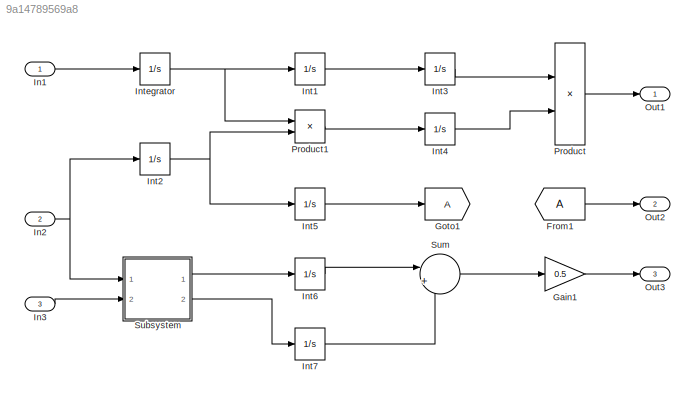
MODEL slx_9a14789569a8
KIND model
CONFIG AbsTol = auto
CONFIG EnableMultiTasking = on
CONFIG FixedStep = auto
CONFIG MaxStep = auto
CONFIG MinStep = auto
CONFIG RelTol = 1e-3
CONFIG SampleTimeConstraint = Unconstrained
CONFIG Solver = ode45
CONFIG SolverName = ode45
CONFIG StartTime = 0.0
CONFIG StopTime = 10.0
BLOCK [From] From1
BLOCK [Gain] Gain1
  Gain = 0.5
  OutDataTypeStr = Inherit: Inherit via internal rule
  ParamDataTypeStr = Inherit: Inherit via internal rule
  SaturateOnIntegerOverflow = off
BLOCK [Goto] Goto1
BLOCK [Inport] In1
  IconDisplay = Port number
BLOCK [Inport] In2
  IconDisplay = Port number
  Port = 2
BLOCK [Inport] In3
  IconDisplay = Port number
  Port = 3
BLOCK [Integrator] Int1
  Ports = [1, 1]
BLOCK [Integrator] Int2
  Ports = [1, 1]
BLOCK [Integrator] Int3
  Ports = [1, 1]
BLOCK [Integrator] Int4
  Ports = [1, 1]
BLOCK [Integrator] Int5
  Ports = [1, 1]
BLOCK [Integrator] Int6
  Ports = [1, 1]
BLOCK [Integrator] Int7
  Ports = [1, 1]
BLOCK [Integrator] Integrator
  Ports = [1, 1]
BLOCK [Outport] Out1
  IconDisplay = Port number
BLOCK [Outport] Out2
  IconDisplay = Port number
  Port = 2
BLOCK [Outport] Out3
  IconDisplay = Port number
  Port = 3
BLOCK [Product] Product
  InputSameDT = off
  OutDataTypeStr = Inherit: Inherit via internal rule
  Ports = [2, 1]
  SaturateOnIntegerOverflow = off
BLOCK [Product] Product1
  InputSameDT = off
  OutDataTypeStr = Inherit: Inherit via internal rule
  Ports = [2, 1]
  SaturateOnIntegerOverflow = off
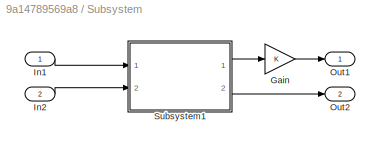
BLOCK [SubSystem] Subsystem
  Ports = [2, 2]
  RequestExecContextInheritance = off
  Variant = off
BLOCK [Gain] Subsystem/Gain
  OutDataTypeStr = Inherit: Inherit via internal rule
  ParamDataTypeStr = Inherit: Inherit via internal rule
  SaturateOnIntegerOverflow = off
BLOCK [Inport] Subsystem/In1
  IconDisplay = Port number
BLOCK [Inport] Subsystem/In2
  IconDisplay = Port number
  Port = 2
BLOCK [Outport] Subsystem/Out1
  IconDisplay = Port number
BLOCK [Outport] Subsystem/Out2
  IconDisplay = Port number
  Port = 2
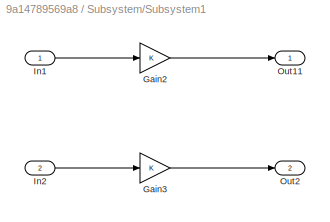
BLOCK [SubSystem] Subsystem/Subsystem1
  Ports = [2, 2]
  RequestExecContextInheritance = off
  Variant = off
BLOCK [Gain] Subsystem/Subsystem1/Gain2
  OutDataTypeStr = Inherit: Inherit via internal rule
  ParamDataTypeStr = Inherit: Inherit via internal rule
  SaturateOnIntegerOverflow = off
BLOCK [Gain] Subsystem/Subsystem1/Gain3
  OutDataTypeStr = Inherit: Inherit via internal rule
  ParamDataTypeStr = Inherit: Inherit via internal rule
  SaturateOnIntegerOverflow = off
BLOCK [Inport] Subsystem/Subsystem1/In1
  IconDisplay = Port number
BLOCK [Inport] Subsystem/Subsystem1/In2
  IconDisplay = Port number
  Port = 2
BLOCK [Outport] Subsystem/Subsystem1/Out11
  IconDisplay = Port number
BLOCK [Outport] Subsystem/Subsystem1/Out2
  IconDisplay = Port number
  Port = 2
BLOCK [Sum] Sum
  IconShape = round
  InputSameDT = off
  Inputs = |++
  OutDataTypeStr = Inherit: Inherit via internal rule
  Ports = [2, 1]
  SaturateOnIntegerOverflow = off
LINE From1:1 -> Out2:1
LINE Gain1:1 -> Out3:1
LINE In1:1 -> Integrator:1
NET In2:1 -> Int2:1, Subsystem:1
LINE In3:1 -> Subsystem:2
LINE Int1:1 -> Int3:1
NET Int2:1 -> Int5:1, Product1:2
LINE Int3:1 -> Product:1
LINE Int4:1 -> Product:2
LINE Int5:1 -> Goto1:1
LINE Int6:1 -> Sum:1
LINE Int7:1 -> Sum:2
NET Integrator:1 -> Int1:1, Product1:1
LINE Product1:1 -> Int4:1
LINE Product:1 -> Out1:1
LINE Subsystem/Gain:1 -> Subsystem/Out1:1
LINE Subsystem/In1:1 -> Subsystem/Subsystem1:1
LINE Subsystem/In2:1 -> Subsystem/Subsystem1:2
LINE Subsystem/Subsystem1/Gain2:1 -> Subsystem/Subsystem1/Out11:1
LINE Subsystem/Subsystem1/Gain3:1 -> Subsystem/Subsystem1/Out2:1
LINE Subsystem/Subsystem1/In1:1 -> Subsystem/Subsystem1/Gain2:1
LINE Subsystem/Subsystem1/In2:1 -> Subsystem/Subsystem1/Gain3:1
LINE Subsystem/Subsystem1:1 -> Subsystem/Gain:1
LINE Subsystem/Subsystem1:2 -> Subsystem/Out2:1
LINE Subsystem:1 -> Int6:1
LINE Subsystem:2 -> Int7:1
LINE Sum:1 -> Gain1:1
note: NET lines group one-source signal fan-out (src -> all destinations, sorted); 1:1 wires keep LINE
